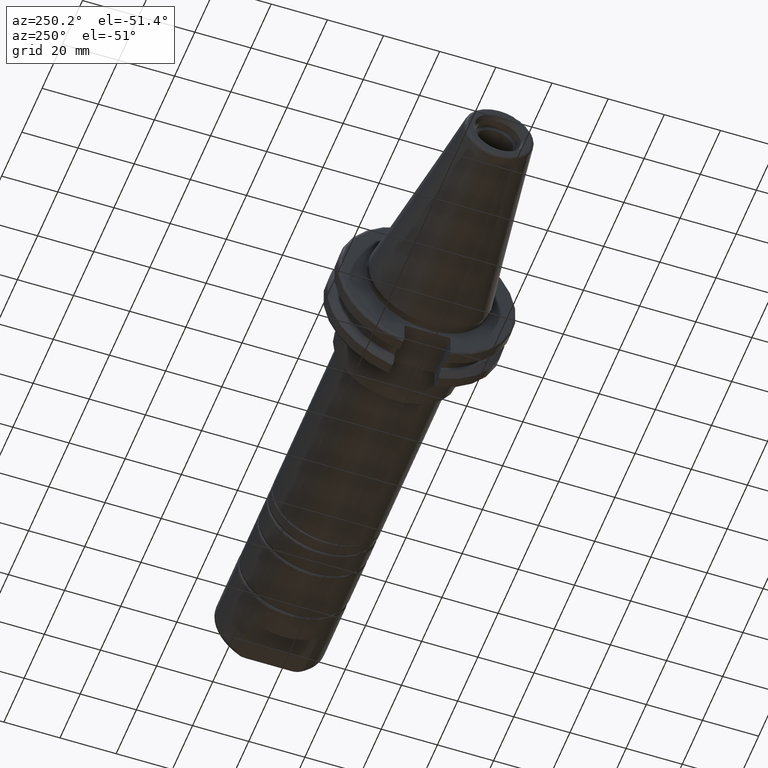
[diagram: clean part render]
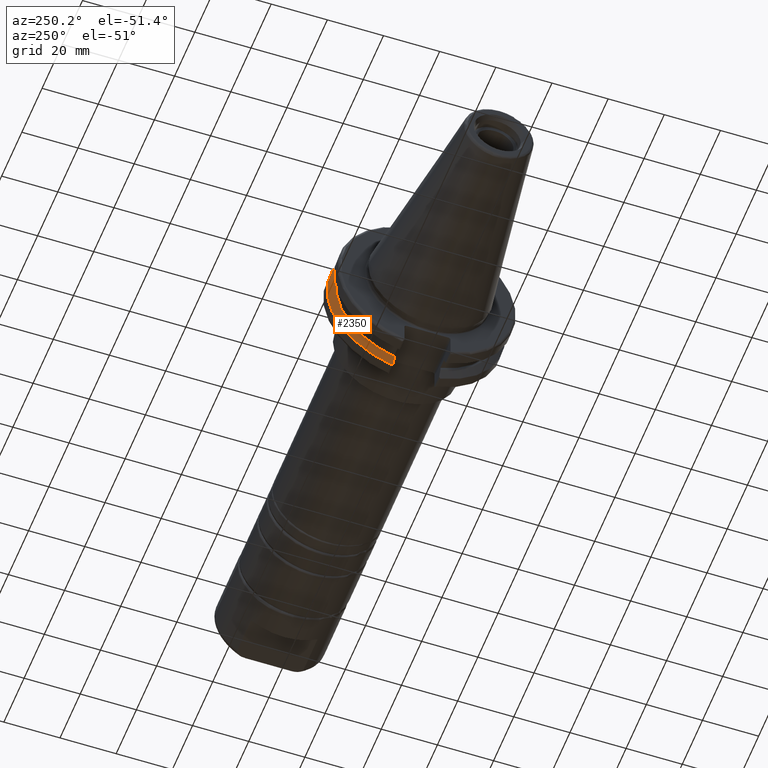
[diagram: same view with one face highlighted and labeled with its STEP entity id]
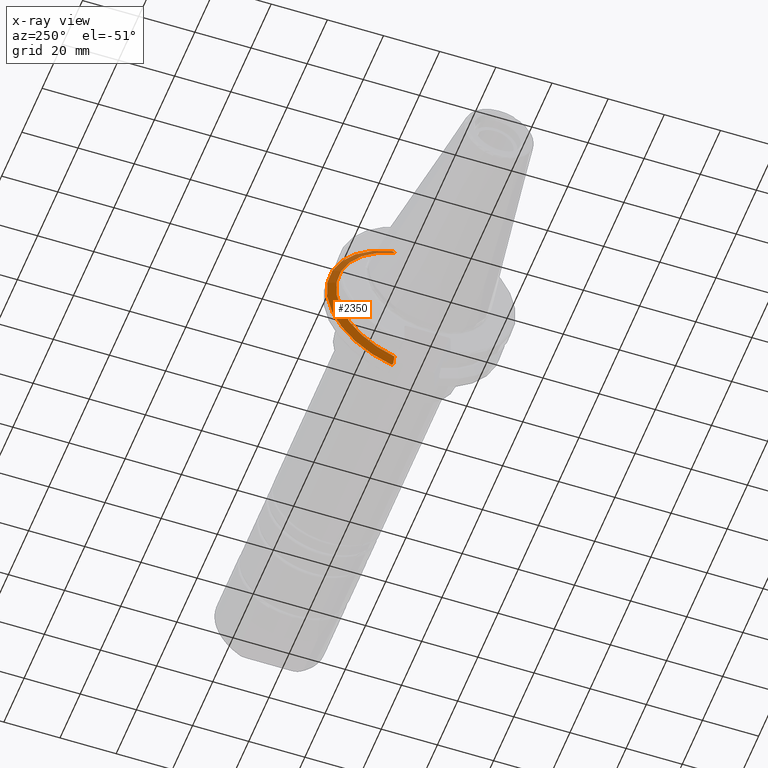
[diagram: x-ray of the same camera — body ghosted, the highlighted face saturated]
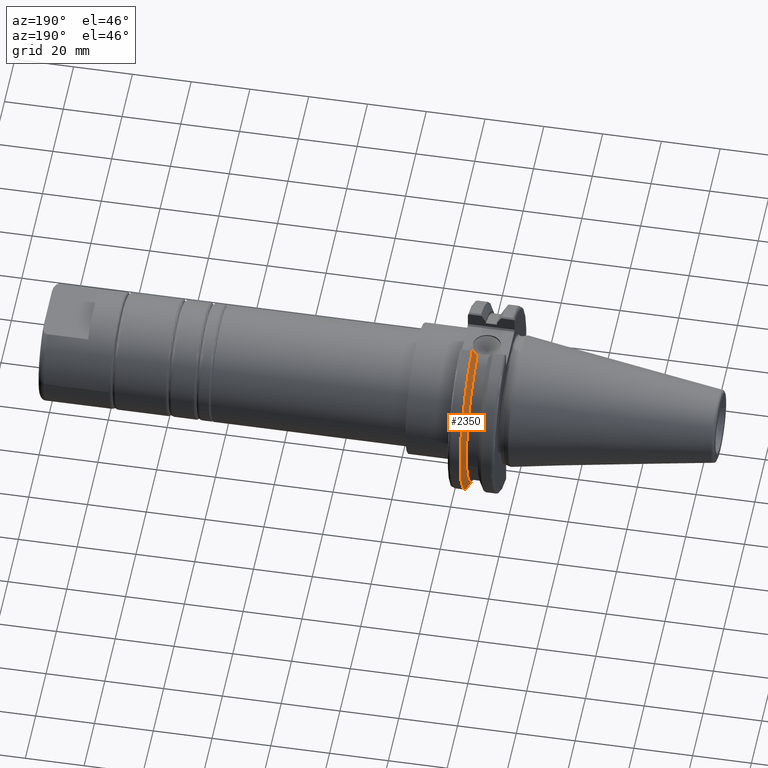
[diagram: same view with one face highlighted and labeled with its STEP entity id]
A machine part, auxiliary view. The second image highlights one B-rep face of the part: STEP entity #2350.
The next image is the same camera in x-ray: the body ghosted, the highlighted face saturated — about 3% of this face is hidden behind the body in this view.
A second angle (auxiliary view) of the same face is appended — the face is thin or edge-on in the first view.
In plain terms, the highlighted conical surface has half-angle 60 deg.
Its self-contained STEP definition (entity closure, byte-faithful):
#513=(
BOUNDED_CURVE()
B_SPLINE_CURVE(2,(#3861,#3862,#3863),.UNSPECIFIED.,.F.,.F.)
B_SPLINE_CURVE_WITH_KNOTS((3,3),(0.329353533631224,0.393258405001022),
 .UNSPECIFIED.)
CURVE()
GEOMETRIC_REPRESENTATION_ITEM()
RATIONAL_B_SPLINE_CURVE((1.00047644010598,1.00028444218298,1.))
REPRESENTATION_ITEM('')
);
#515=(
BOUNDED_CURVE()
B_SPLINE_CURVE(2,(#3888,#3889,#3890),.UNSPECIFIED.,.F.,.F.)
B_SPLINE_CURVE_WITH_KNOTS((3,3),(0.0550586467388169,0.33160778953585),
 .UNSPECIFIED.)
CURVE()
GEOMETRIC_REPRESENTATION_ITEM()
RATIONAL_B_SPLINE_CURVE((1.00031614444917,1.00095203903631,1.))
REPRESENTATION_ITEM('')
);
#523=(
BOUNDED_CURVE()
B_SPLINE_CURVE(2,(#4093,#4094,#4095),.UNSPECIFIED.,.F.,.F.)
B_SPLINE_CURVE_WITH_KNOTS((3,3),(0.,0.276549142797025),.UNSPECIFIED.)
CURVE()
GEOMETRIC_REPRESENTATION_ITEM()
RATIONAL_B_SPLINE_CURVE((1.,1.0009520390361,1.0003161444491))
REPRESENTATION_ITEM('')
);
#527=(
BOUNDED_CURVE()
B_SPLINE_CURVE(2,(#4132,#4133,#4134),.UNSPECIFIED.,.F.,.F.)
B_SPLINE_CURVE_WITH_KNOTS((3,3),(0.,0.0639048713675822),.UNSPECIFIED.)
CURVE()
GEOMETRIC_REPRESENTATION_ITEM()
RATIONAL_B_SPLINE_CURVE((1.,1.00028444218292,1.00047644010589))
REPRESENTATION_ITEM('')
);
#551=CONICAL_SURFACE('',#2709,30.3546886482472,1.0471975511966);
#609=CIRCLE('',#2684,31.75);
#619=CIRCLE('',#2707,28.9593772964944);
#794=FACE_OUTER_BOUND('',#914,.T.);
#914=EDGE_LOOP('',(#1990,#1991,#1992,#1993,#1994,#1995));
#1285=VERTEX_POINT('',#3858);
#1286=VERTEX_POINT('',#3860);
#1293=VERTEX_POINT('',#3886);
#1334=VERTEX_POINT('',#4090);
#1335=VERTEX_POINT('',#4092);
#1343=VERTEX_POINT('',#4122);
#1478=EDGE_CURVE('',#1285,#1286,#513,.T.);
#1488=EDGE_CURVE('',#1285,#1293,#515,.T.);
#1549=EDGE_CURVE('',#1335,#1334,#523,.T.);
#1561=EDGE_CURVE('',#1286,#1343,#609,.T.);
#1565=EDGE_CURVE('',#1343,#1334,#527,.T.);
#1577=EDGE_CURVE('',#1293,#1335,#619,.T.);
#1990=ORIENTED_EDGE('',*,*,#1478,.F.);
#1991=ORIENTED_EDGE('',*,*,#1488,.T.);
#1992=ORIENTED_EDGE('',*,*,#1577,.T.);
#1993=ORIENTED_EDGE('',*,*,#1549,.T.);
#1994=ORIENTED_EDGE('',*,*,#1565,.F.);
#1995=ORIENTED_EDGE('',*,*,#1561,.F.);
#2350=ADVANCED_FACE('',(#794),#551,.T.);
#2684=AXIS2_PLACEMENT_3D('',#4123,#3156,#3157);
#2707=AXIS2_PLACEMENT_3D('',#4161,#3205,#3206);
#2709=AXIS2_PLACEMENT_3D('',#4163,#3209,#3210);
#3156=DIRECTION('center_axis',(1.,0.,0.));
#3157=DIRECTION('ref_axis',(0.,0.,-1.));
#3205=DIRECTION('center_axis',(1.,0.,0.));
#3206=DIRECTION('ref_axis',(0.,0.,-1.));
#3209=DIRECTION('center_axis',(1.,0.,0.));
#3210=DIRECTION('ref_axis',(0.,1.,0.));
#3858=CARTESIAN_POINT('',(14.3744146964874,8.19,-30.1755016258903));
#3860=CARTESIAN_POINT('',(14.6531667690756,8.67204822802685,-30.5427254764662));
#3861=CARTESIAN_POINT('Ctrl Pts',(14.3744146964874,8.19,-30.1755016258903));
#3862=CARTESIAN_POINT('Ctrl Pts',(14.5121085187884,8.42917748263461,-30.3577067892692));
#3863=CARTESIAN_POINT('Ctrl Pts',(14.6531667690756,8.67204822802686,-30.5427254764662));
#3886=CARTESIAN_POINT('',(13.042,8.19,-27.7771386827498));
#3888=CARTESIAN_POINT('Ctrl Pts',(14.3744146964874,8.19,-30.1755016258903));
#3889=CARTESIAN_POINT('Ctrl Pts',(13.6806364384668,8.19,-28.9303689539538));
#3890=CARTESIAN_POINT('Ctrl Pts',(13.042,8.19,-27.7771386827498));
#4090=CARTESIAN_POINT('',(14.3744146964874,8.19,30.1755016258903));
#4092=CARTESIAN_POINT('',(13.042,8.19,27.7771386827498));
#4093=CARTESIAN_POINT('Ctrl Pts',(13.042,8.19,27.7771386827498));
#4094=CARTESIAN_POINT('Ctrl Pts',(13.6806364384667,8.19,28.9303689539537));
#4095=CARTESIAN_POINT('Ctrl Pts',(14.3744146964874,8.19,30.1755016258903));
#4122=CARTESIAN_POINT('',(14.6531667690756,8.67204822802685,30.5427254764662));
#4123=CARTESIAN_POINT('Origin',(14.6531667690756,0.,0.));
#4132=CARTESIAN_POINT('Ctrl Pts',(14.6531667690756,8.67204822802686,30.5427254764662));
#4133=CARTESIAN_POINT('Ctrl Pts',(14.5121085187837,8.42917748262643,30.357706789263));
#4134=CARTESIAN_POINT('Ctrl Pts',(14.3744146964874,8.19,30.1755016258903));
#4161=CARTESIAN_POINT('Origin',(13.042,0.,0.));
#4163=CARTESIAN_POINT('Origin',(13.8475833845378,0.,0.));